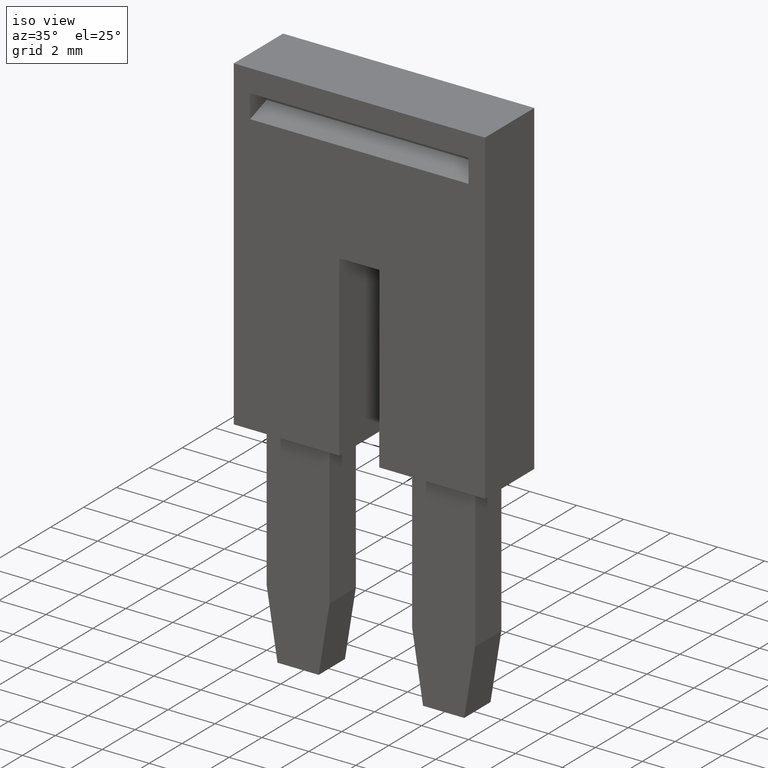
[diagram: clean part render]
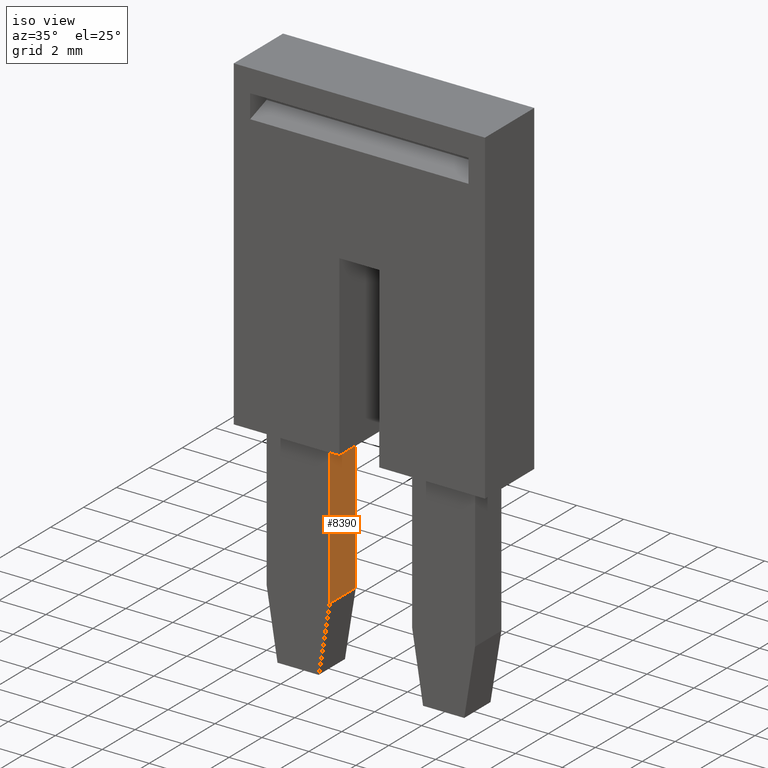
[diagram: same view with one face highlighted and labeled with its STEP entity id]
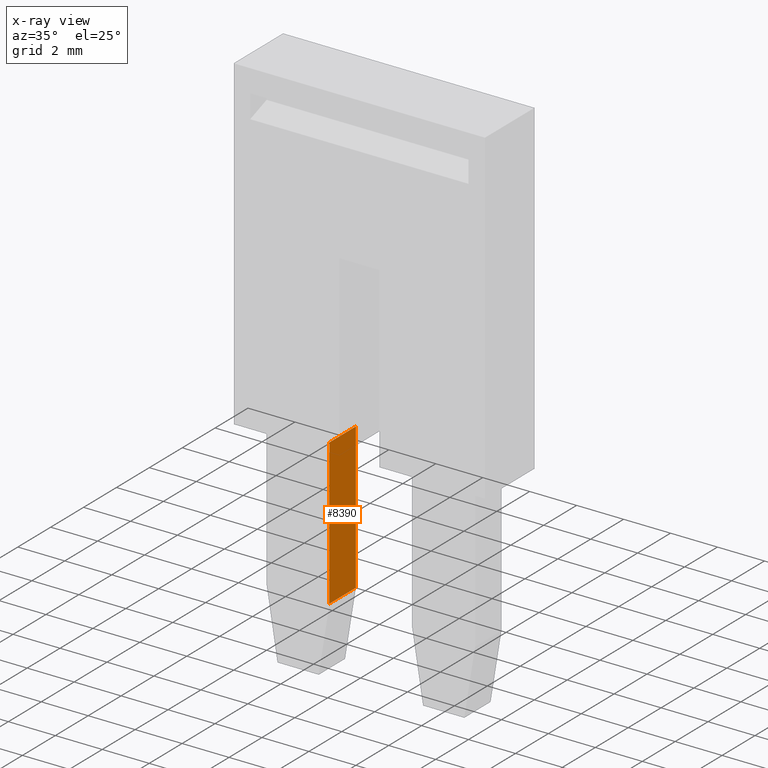
[diagram: x-ray of the same camera — body ghosted, the highlighted face saturated]
A machine part, iso view. The second image highlights one B-rep face of the part: STEP entity #8390.
The next image is the same camera in x-ray: the body ghosted, the highlighted face saturated — about 0% of this face is hidden behind the body in this view.
In plain terms, the highlighted planar face has unit normal (-1, 0, 0).
Its self-contained STEP definition (entity closure, byte-faithful):
#3380=CARTESIAN_POINT('',(2.60716722168538,-23.0750000000004,
53.5999999994275));
#3390=DIRECTION('',(1.,-3.74380860162795E-42,5.39539692780682E-26));
#3400=VECTOR('',#3390,1.);
#3410=LINE('',#3380,#3400);
#3420=CARTESIAN_POINT('',(3.30716722167563,-23.0750000000004,
53.5999999994275));
#3430=VERTEX_POINT('',#3420);
#3440=CARTESIAN_POINT('',(4.90716722167563,-23.0750000000004,
53.5999999994275));
#3450=VERTEX_POINT('',#3440);
#3460=EDGE_CURVE('',#3430,#3450,#3410,.T.);
#6620=CARTESIAN_POINT('',(4.90716722167563,-29.2807420769455,
53.5999999966935));
#6630=VERTEX_POINT('',#6620);
#6660=CARTESIAN_POINT('',(4.90716722167563,-21.7849999999886,
53.5999999999958));
#6670=DIRECTION('',(-1.22464679914735E-16,-1.,-4.40567591495132E-10));
#6680=VECTOR('',#6670,1.);
#6690=LINE('',#6660,#6680);
#6700=EDGE_CURVE('',#3450,#6630,#6690,.T.);
#7410=CARTESIAN_POINT('',(3.30716722167563,-29.2807420769455,
53.5999999966935));
#7420=VERTEX_POINT('',#7410);
#7540=CARTESIAN_POINT('',(3.30716722167563,-21.7849999999886,
53.5999999999958));
#7550=DIRECTION('',(-1.22464679914735E-16,-1.,-4.40567591495132E-10));
#7560=VECTOR('',#7550,1.);
#7570=LINE('',#7540,#7560);
#7580=EDGE_CURVE('',#3430,#7420,#7570,.T.);
#8230=CARTESIAN_POINT('',(4.90716722167563,-23.9749993209239,
53.599999999031));
#8240=DIRECTION('',(5.39539692780682E-26,4.40567591495132E-10,-1.));
#8250=DIRECTION('',(-1.22464679914735E-16,-1.,-4.40567591495132E-10));
#8260=AXIS2_PLACEMENT_3D('',#8230,#8240,#8250);
#8270=PLANE('',#8260);
#8280=ORIENTED_EDGE('',*,*,#6700,.F.);
#8290=CARTESIAN_POINT('',(5.60716722168535,-29.2807420769455,
53.5999999966935));
#8300=DIRECTION('',(-1.,1.22464679914735E-16,-1.20847650269172E-33));
#8310=VECTOR('',#8300,1.);
#8320=LINE('',#8290,#8310);
#8330=EDGE_CURVE('',#6630,#7420,#8320,.T.);
#8340=ORIENTED_EDGE('',*,*,#8330,.F.);
#8350=ORIENTED_EDGE('',*,*,#7580,.T.);
#8360=ORIENTED_EDGE('',*,*,#3460,.F.);
#8370=EDGE_LOOP('',(#8360,#8350,#8340,#8280));
#8380=FACE_OUTER_BOUND('',#8370,.T.);
#8390=ADVANCED_FACE('',(#8380),#8270,.F.);